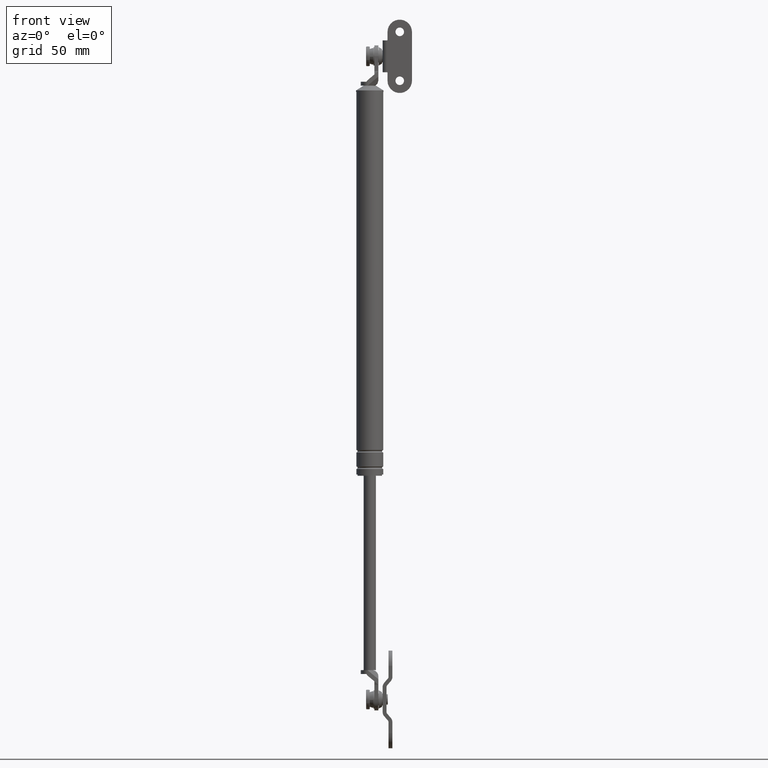
[diagram: clean part render]
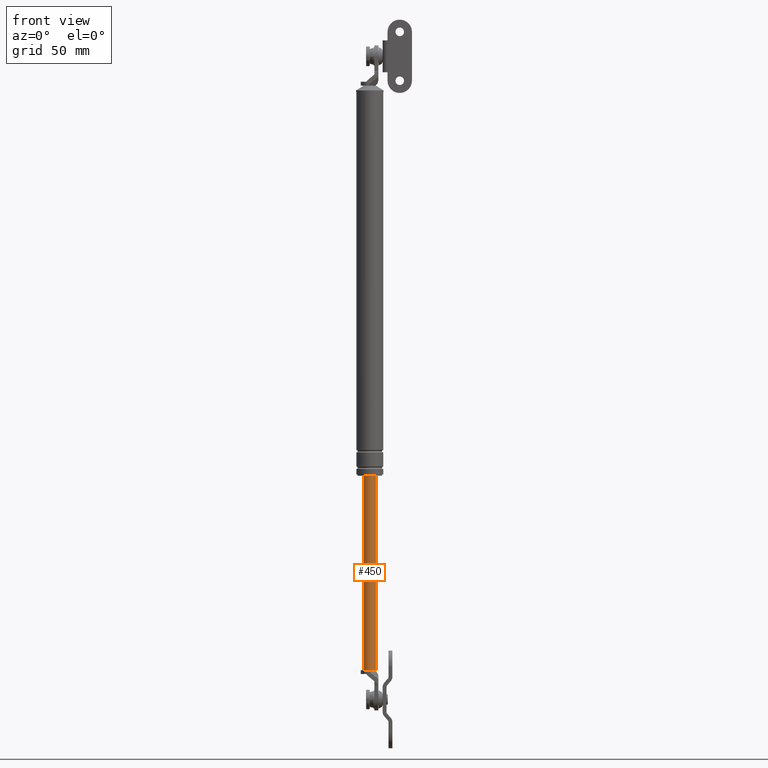
[diagram: same view with one face highlighted and labeled with its STEP entity id]
A machine part, front view. The second image highlights one B-rep face of the part: STEP entity #450.
In plain terms, the highlighted cylindrical surface (edge-blend (fillet) strip) has radius 5 mm, axis along (0, 0, 1).
Its self-contained STEP definition (entity closure, byte-faithful):
#450=ADVANCED_FACE('',(#2196),#2195,.T.);
#2195=CYLINDRICAL_SURFACE('',#3422,5.00000002618E+000);
#2196=FACE_OUTER_BOUND('',#3423,.T.);
#3419=CARTESIAN_POINT('',(0.00000000000E+000,-2.61800128243E-008,0.00000000000E+000));
#3420=DIRECTION('',(-0.00000000000E+000,-0.00000000000E+000,1.00000000000E+000));
#3421=DIRECTION('',(1.00000000000E+000,0.00000000000E+000,0.00000000000E+000));
#3422=AXIS2_PLACEMENT_3D('',#3419,#3420,#3421);
#3423=EDGE_LOOP('',(#4281,#4282,#4283,#4284,#4285));
#4281=ORIENTED_EDGE('',*,*,#4702,.F.);
#4282=ORIENTED_EDGE('',*,*,#4700,.F.);
#4283=ORIENTED_EDGE('',*,*,#4715,.T.);
#4284=ORIENTED_EDGE('',*,*,#4710,.T.);
#4285=ORIENTED_EDGE('',*,*,#4716,.F.);
#4700=EDGE_CURVE('',#7465,#7452,#7472,.T.);
#4702=EDGE_CURVE('',#7452,#7484,#7485,.T.);
#4710=EDGE_CURVE('',#7535,#7536,#7537,.T.);
#4715=EDGE_CURVE('',#7465,#7535,#7567,.T.);
#4716=EDGE_CURVE('',#7484,#7536,#7573,.T.);
#7452=VERTEX_POINT('',#9252);
#7465=VERTEX_POINT('',#9260);
#7472=CIRCLE('',#9268,5.00000000000E+000);
#7484=VERTEX_POINT('',#9272);
#7485=CIRCLE('',#9276,5.00000000000E+000);
#7535=VERTEX_POINT('',#9304);
#7536=VERTEX_POINT('',#9305);
#7537=CIRCLE('',#9309,5.00000002618E+000);
#7567=(BOUNDED_CURVE() B_SPLINE_CURVE(1,(#9322,#9323),.UNSPECIFIED.,.F.,.F.) B_SPLINE_CURVE_WITH_KNOTS((2,2),(5.58659216388E-002,9.44134078355E-001),.UNSPECIFIED.) CURVE() GEOMETRIC_REPRESENTATION_ITEM() RATIONAL_B_SPLINE_CURVE((1.00000000000E+000,1.00000000000E+000)) REPRESENTATION_ITEM('') );
#7573=(BOUNDED_CURVE() B_SPLINE_CURVE(1,(#9324,#9325),.UNSPECIFIED.,.F.,.F.) B_SPLINE_CURVE_WITH_KNOTS((2,2),(5.58659217877E-002,9.44134078212E-001),.UNSPECIFIED.) CURVE() GEOMETRIC_REPRESENTATION_ITEM() RATIONAL_B_SPLINE_CURVE((7.50000000000E-001,7.50000000000E-001)) REPRESENTATION_ITEM('') );
#9252=CARTESIAN_POINT('',(2.00000000000E+000,-4.58257569496E+000,-3.89000015000E+002));
#9260=CARTESIAN_POINT('',(5.00000000000E+000,-2.61900324487E-008,-3.89000015000E+002));
#9265=CARTESIAN_POINT('',(0.00000000000E+000,-8.79296635503E-014,-3.89000015000E+002));
#9266=DIRECTION('',(0.00000000000E+000,0.00000000000E+000,-1.00000000000E+000));
#9267=DIRECTION('',(4.00000000000E-001,9.16515138991E-001,0.00000000000E+000));
#9268=AXIS2_PLACEMENT_3D('',#9265,#9266,#9267);
#9272=CARTESIAN_POINT('',(-5.00000000000E+000,9.05907474325E-007,-3.89000015000E+002));
#9273=CARTESIAN_POINT('',(0.00000000000E+000,-8.79296635503E-014,-3.89000015000E+002));
#9274=DIRECTION('',(0.00000000000E+000,0.00000000000E+000,-1.00000000000E+000));
#9275=DIRECTION('',(1.00000000000E+000,-0.00000000000E+000,-0.00000000000E+000));
#9276=AXIS2_PLACEMENT_3D('',#9273,#9274,#9275);
#9304=CARTESIAN_POINT('',(5.00000002618E+000,-2.61800125282E-008,-2.30000015000E+002));
#9305=CARTESIAN_POINT('',(-5.00000002618E+000,-2.61800128243E-008,-2.30000015000E+002));
#9306=CARTESIAN_POINT('',(0.00000000000E+000,-2.61800128243E-008,-2.30000015000E+002));
#9307=DIRECTION('',(-0.00000000000E+000,0.00000000000E+000,-1.00000000000E+000));
#9308=DIRECTION('',(-1.00000000000E+000,-1.22460635382E-016,0.00000000000E+000));
#9309=AXIS2_PLACEMENT_3D('',#9306,#9307,#9308);
#9322=CARTESIAN_POINT('',(5.00000002618E+000,-2.61800128243E-008,-3.89000015027E+002));
#9323=CARTESIAN_POINT('',(5.00000002618E+000,-2.61800128243E-008,-2.30000014975E+002));
#9324=CARTESIAN_POINT('',(-5.00000002618E+000,-2.61800131203E-008,-3.89000015000E+002));
#9325=CARTESIAN_POINT('',(-5.00000002618E+000,-2.61800131203E-008,-2.30000015000E+002));